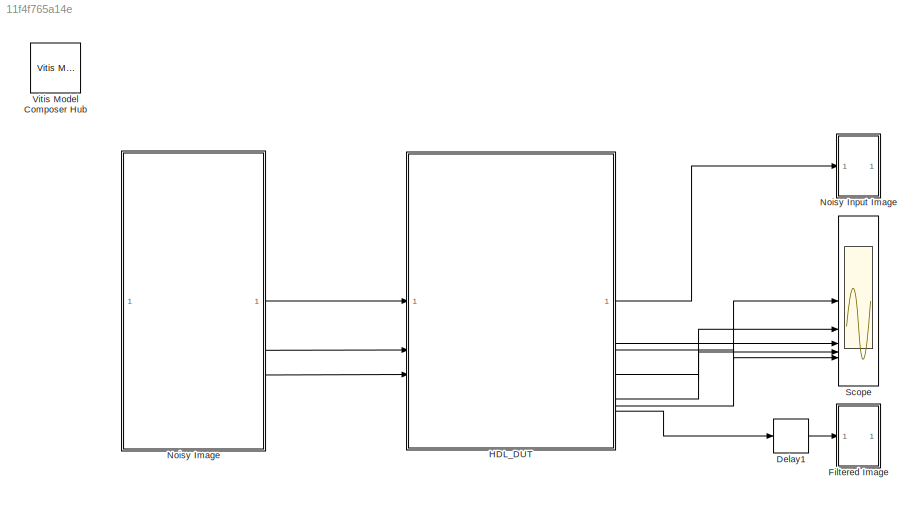
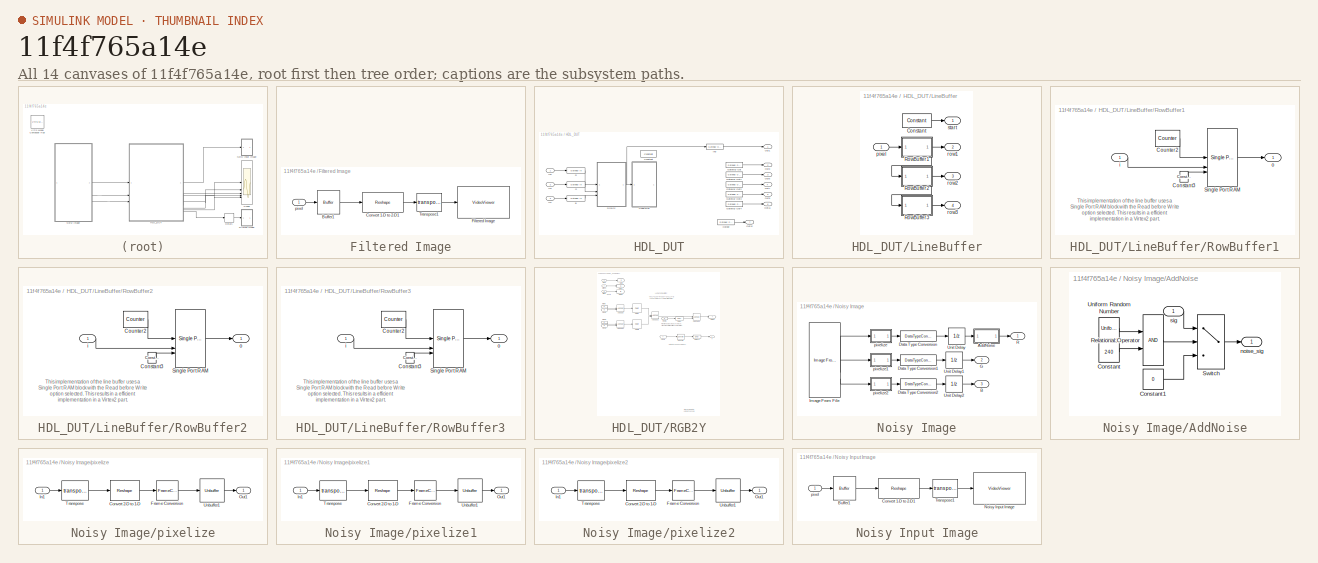
[diagram: thumbnail index - all 14 canvases of the model, root first then tree order]
MODEL slx_11f4f765a14e
KIND model
CONFIG AbsTol = auto
CONFIG EnableMultiTasking = on
CONFIG FixedStep = auto
CONFIG MaxStep = auto
CONFIG MinStep = auto
CONFIG PreLoadFcn = ImSize = 256;
CONFIG RelTol = 1e-3
CONFIG SampleTimeConstraint = Unconstrained
CONFIG SolverName = VariableStepDiscrete
CONFIG StartTime = 0.0
CONFIG StopTime = 256*256*2
BLOCK [Delay] Delay1
  DelayLength = 256*256-3*256-9-3
  InputPortMap = u0
  SampleTime = 1
BLOCK [SubSystem] Filtered Image
BLOCK [Buffer] Filtered Image/Buffer1
  N = ImSize*ImSize
BLOCK [Reshape] Filtered Image/Convert 1-D to 2-D1
  OutputDimensionality = Customize
  OutputDimensions = [ImSize ImSize]
BLOCK [VideoViewer] Filtered Image/Filtered Image
  FigPos = [722 1001 408 300]
  ScopeSpecificationString = vipscopes.VideoViewerScopeCfg('Version','2021a','Position',[755 390 410 300])
  colormapValue = gray(256)
BLOCK [Math] Filtered Image/Transpose1
  Operator = transpose
BLOCK [Inport] Filtered Image/pixel
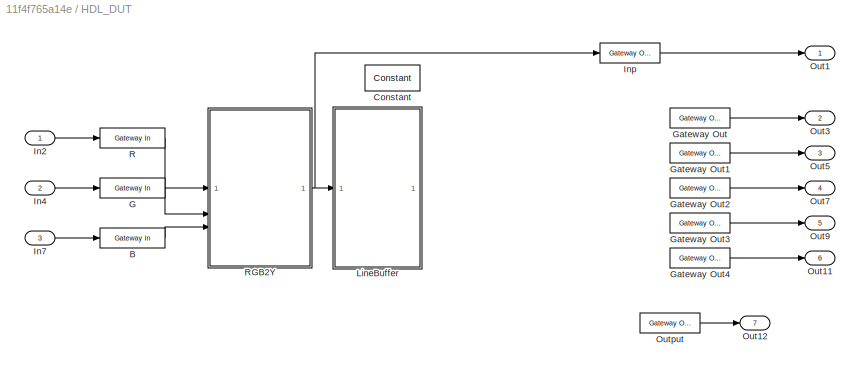
BLOCK [SubSystem] HDL_DUT
BLOCK [Reference] HDL_DUT/B  REF=hdlBasic/Gateway In
  SourceBlock = hdlBasic/Gateway In
  SourceType = Gateway In Block
BLOCK [Reference] HDL_DUT/Constant  REF=hdlBasic/Constant
  SourceBlock = hdlBasic/Constant
  SourceType = Constant Block Block
BLOCK [Reference] HDL_DUT/G  REF=hdlBasic/Gateway In
  SourceBlock = hdlBasic/Gateway In
  SourceType = Gateway In Block
BLOCK [Reference] HDL_DUT/Gateway Out  REF=hdlBasic/Gateway Out
  SourceBlock = hdlBasic/Gateway Out
  SourceType = Gateway Out Block
BLOCK [Reference] HDL_DUT/Gateway Out1  REF=hdlBasic/Gateway Out
  SourceBlock = hdlBasic/Gateway Out
  SourceType = Gateway Out Block
BLOCK [Reference] HDL_DUT/Gateway Out2  REF=hdlBasic/Gateway Out
  SourceBlock = hdlBasic/Gateway Out
  SourceType = Gateway Out Block
BLOCK [Reference] HDL_DUT/Gateway Out3  REF=hdlBasic/Gateway Out
  SourceBlock = hdlBasic/Gateway Out
  SourceType = Gateway Out Block
BLOCK [Reference] HDL_DUT/Gateway Out4  REF=hdlBasic/Gateway Out
  SourceBlock = hdlBasic/Gateway Out
  SourceType = Gateway Out Block
BLOCK [Inport] HDL_DUT/In2
BLOCK [Inport] HDL_DUT/In4
  Port = 2
BLOCK [Inport] HDL_DUT/In7
  Port = 3
BLOCK [Reference] HDL_DUT/Inp  REF=hdlBasic/Gateway Out
  SourceBlock = hdlBasic/Gateway Out
  SourceType = Gateway Out Block
BLOCK [SubSystem] HDL_DUT/LineBuffer
BLOCK [Reference] HDL_DUT/LineBuffer/Constant  REF=hdlBasic/Constant
  SourceBlock = hdlBasic/Constant
  SourceType = Constant Block Block
BLOCK [SubSystem] HDL_DUT/LineBuffer/RowBuffer1
BLOCK [Reference] HDL_DUT/LineBuffer/RowBuffer1/Constant3  REF=hdlBasic/Constant
  SourceBlock = hdlBasic/Constant
  SourceType = Constant Block Block
BLOCK [Reference] HDL_DUT/LineBuffer/RowBuffer1/Counter2  REF=hdlBasic/Counter
  SourceBlock = hdlBasic/Counter
  SourceType = Counter Block
BLOCK [Reference] HDL_DUT/LineBuffer/RowBuffer1/Single Port RAM  REF=hdlBasic/Single Port RAM
  SourceBlock = hdlBasic/Single Port RAM
  SourceType = Single Port Random Access Memory Block
BLOCK [Inport] HDL_DUT/LineBuffer/RowBuffer1/i
BLOCK [Outport] HDL_DUT/LineBuffer/RowBuffer1/o
  VectorParamsAs1DForOutWhenUnconnected = off
BLOCK [SubSystem] HDL_DUT/LineBuffer/RowBuffer2
BLOCK [Reference] HDL_DUT/LineBuffer/RowBuffer2/Constant3  REF=hdlBasic/Constant
  SourceBlock = hdlBasic/Constant
  SourceType = Constant Block Block
BLOCK [Reference] HDL_DUT/LineBuffer/RowBuffer2/Counter2  REF=hdlBasic/Counter
  SourceBlock = hdlBasic/Counter
  SourceType = Counter Block
BLOCK [Reference] HDL_DUT/LineBuffer/RowBuffer2/Single Port RAM  REF=hdlBasic/Single Port RAM
  SourceBlock = hdlBasic/Single Port RAM
  SourceType = Single Port Random Access Memory Block
BLOCK [Inport] HDL_DUT/LineBuffer/RowBuffer2/i
BLOCK [Outport] HDL_DUT/LineBuffer/RowBuffer2/o
  VectorParamsAs1DForOutWhenUnconnected = off
BLOCK [SubSystem] HDL_DUT/LineBuffer/RowBuffer3
BLOCK [Reference] HDL_DUT/LineBuffer/RowBuffer3/Constant3  REF=hdlBasic/Constant
  SourceBlock = hdlBasic/Constant
  SourceType = Constant Block Block
BLOCK [Reference] HDL_DUT/LineBuffer/RowBuffer3/Counter2  REF=hdlBasic/Counter
  SourceBlock = hdlBasic/Counter
  SourceType = Counter Block
BLOCK [Reference] HDL_DUT/LineBuffer/RowBuffer3/Single Port RAM  REF=hdlBasic/Single Port RAM
  SourceBlock = hdlBasic/Single Port RAM
  SourceType = Single Port Random Access Memory Block
BLOCK [Inport] HDL_DUT/LineBuffer/RowBuffer3/i
BLOCK [Outport] HDL_DUT/LineBuffer/RowBuffer3/o
  VectorParamsAs1DForOutWhenUnconnected = off
BLOCK [Inport] HDL_DUT/LineBuffer/pixel
BLOCK [Outport] HDL_DUT/LineBuffer/row1
  Port = 2
  VectorParamsAs1DForOutWhenUnconnected = off
BLOCK [Outport] HDL_DUT/LineBuffer/row2
  Port = 3
  VectorParamsAs1DForOutWhenUnconnected = off
BLOCK [Outport] HDL_DUT/LineBuffer/row3
  Port = 4
  VectorParamsAs1DForOutWhenUnconnected = off
BLOCK [Outport] HDL_DUT/LineBuffer/start
  VectorParamsAs1DForOutWhenUnconnected = off
BLOCK [Outport] HDL_DUT/Out1
BLOCK [Outport] HDL_DUT/Out11
  Port = 6
BLOCK [Outport] HDL_DUT/Out12
  Port = 7
BLOCK [Outport] HDL_DUT/Out3
  Port = 2
BLOCK [Outport] HDL_DUT/Out5
  Port = 3
BLOCK [Outport] HDL_DUT/Out7
  Port = 4
BLOCK [Outport] HDL_DUT/Out9
  Port = 5
BLOCK [Reference] HDL_DUT/Output  REF=hdlBasic/Gateway Out
  SourceBlock = hdlBasic/Gateway Out
  SourceType = Gateway Out Block
BLOCK [Reference] HDL_DUT/R  REF=hdlBasic/Gateway In
  SourceBlock = hdlBasic/Gateway In
  SourceType = Gateway In Block
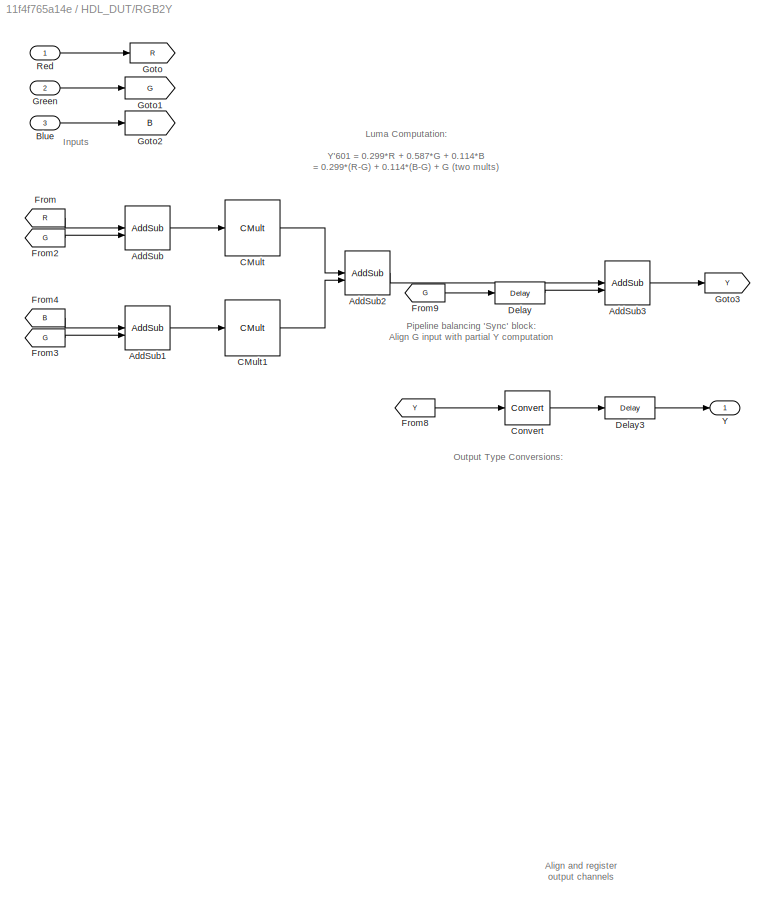
BLOCK [SubSystem] HDL_DUT/RGB2Y
BLOCK [Reference] HDL_DUT/RGB2Y/AddSub  REF=hdlBasic/AddSub
  SourceBlock = hdlBasic/AddSub
  SourceType = Adder/Subtracter Block
BLOCK [Reference] HDL_DUT/RGB2Y/AddSub1  REF=hdlBasic/AddSub
  SourceBlock = hdlBasic/AddSub
  SourceType = Adder/Subtracter Block
BLOCK [Reference] HDL_DUT/RGB2Y/AddSub2  REF=hdlBasic/AddSub
  SourceBlock = hdlBasic/AddSub
  SourceType = Adder/Subtracter Block
BLOCK [Reference] HDL_DUT/RGB2Y/AddSub3  REF=hdlBasic/AddSub
  SourceBlock = hdlBasic/AddSub
  SourceType = Adder/Subtracter Block
BLOCK [Inport] HDL_DUT/RGB2Y/Blue
  Port = 3
BLOCK [Reference] HDL_DUT/RGB2Y/CMult  REF=hdlBasic/CMult
  SourceBlock = hdlBasic/CMult
  SourceType = Constant Multiplier Block
BLOCK [Reference] HDL_DUT/RGB2Y/CMult1  REF=hdlBasic/CMult
  SourceBlock = hdlBasic/CMult
  SourceType = Constant Multiplier Block
BLOCK [Reference] HDL_DUT/RGB2Y/Convert  REF=hdlBasic/Convert
  SourceBlock = hdlBasic/Convert
  SourceType = Type Converter Block
BLOCK [Reference] HDL_DUT/RGB2Y/Delay  REF=hdlBasic/Delay
  SourceBlock = hdlBasic/Delay
  SourceType = Delay Block
BLOCK [Reference] HDL_DUT/RGB2Y/Delay3  REF=hdlBasic/Delay
  SourceBlock = hdlBasic/Delay
  SourceType = Delay Block
BLOCK [From] HDL_DUT/RGB2Y/From
  GotoTag = R
BLOCK [From] HDL_DUT/RGB2Y/From2
  GotoTag = G
BLOCK [From] HDL_DUT/RGB2Y/From3
  GotoTag = G
BLOCK [From] HDL_DUT/RGB2Y/From4
  GotoTag = B
BLOCK [From] HDL_DUT/RGB2Y/From8
  GotoTag = Y
BLOCK [From] HDL_DUT/RGB2Y/From9
  GotoTag = G
BLOCK [Goto] HDL_DUT/RGB2Y/Goto
  GotoTag = R
BLOCK [Goto] HDL_DUT/RGB2Y/Goto1
  GotoTag = G
BLOCK [Goto] HDL_DUT/RGB2Y/Goto2
  GotoTag = B
BLOCK [Goto] HDL_DUT/RGB2Y/Goto3
  GotoTag = Y
BLOCK [Inport] HDL_DUT/RGB2Y/Green
  Port = 2
BLOCK [Inport] HDL_DUT/RGB2Y/Red
BLOCK [Outport] HDL_DUT/RGB2Y/Y
  VectorParamsAs1DForOutWhenUnconnected = off
BLOCK [SubSystem] Noisy Image
BLOCK [SubSystem] Noisy Image/AddNoise
BLOCK [Constant] Noisy Image/AddNoise/Constant
  Value = 240
BLOCK [Constant] Noisy Image/AddNoise/Constant1
  Value = 0
BLOCK [RelationalOperator] Noisy Image/AddNoise/Relational Operator
  InputSameDT = off
  OutDataTypeStr = boolean
  SampleTime = 1
BLOCK [Switch] Noisy Image/AddNoise/Switch
  Criteria = u2 ~= 0
  InputSameDT = off
  SampleTime = 1
  SaturateOnIntegerOverflow = off
BLOCK [UniformRandomNumber] Noisy Image/AddNoise/Uniform Random Number
  Maximum = 255
  Minimum = 0
  SampleTime = 1
BLOCK [Outport] Noisy Image/AddNoise/noise_sig
  VectorParamsAs1DForOutWhenUnconnected = off
BLOCK [Inport] Noisy Image/AddNoise/sig
BLOCK [Outport] Noisy Image/B
  Port = 3
  VectorParamsAs1DForOutWhenUnconnected = off
BLOCK [DataTypeConversion] Noisy Image/Data Type Conversion
  OutDataTypeStr = uint8
  RndMeth = Floor
  SaturateOnIntegerOverflow = off
BLOCK [DataTypeConversion] Noisy Image/Data Type Conversion1
  OutDataTypeStr = uint8
  RndMeth = Floor
  SaturateOnIntegerOverflow = off
BLOCK [DataTypeConversion] Noisy Image/Data Type Conversion2
  OutDataTypeStr = uint8
  RndMeth = Floor
  SaturateOnIntegerOverflow = off
BLOCK [Outport] Noisy Image/G
  Port = 2
  VectorParamsAs1DForOutWhenUnconnected = off
BLOCK [Reference] Noisy Image/Image From File  REF=visionsources/Image From File
  SourceBlock = visionsources/Image From File
  SourceType = Image From File
  Tag = vipblks_nd
BLOCK [Outport] Noisy Image/R
  VectorParamsAs1DForOutWhenUnconnected = off
BLOCK [UnitDelay] Noisy Image/Unit Delay
  HasFrameUpgradeWarning = on
  SampleTime = -1
BLOCK [UnitDelay] Noisy Image/Unit Delay1
  HasFrameUpgradeWarning = on
  SampleTime = -1
BLOCK [UnitDelay] Noisy Image/Unit Delay2
  HasFrameUpgradeWarning = on
  SampleTime = -1
BLOCK [SubSystem] Noisy Image/pixelize
BLOCK [Reshape] Noisy Image/pixelize/Convert 2-D to 1-D
BLOCK [FrameConversion] Noisy Image/pixelize/Frame Conversion
BLOCK [Inport] Noisy Image/pixelize/In1
BLOCK [Outport] Noisy Image/pixelize/Out1
  VectorParamsAs1DForOutWhenUnconnected = off
BLOCK [Math] Noisy Image/pixelize/Transpose
  Operator = transpose
BLOCK [Unbuffer] Noisy Image/pixelize/Unbuffer1
BLOCK [SubSystem] Noisy Image/pixelize1
BLOCK [Reshape] Noisy Image/pixelize1/Convert 2-D to 1-D
BLOCK [FrameConversion] Noisy Image/pixelize1/Frame Conversion
BLOCK [Inport] Noisy Image/pixelize1/In1
BLOCK [Outport] Noisy Image/pixelize1/Out1
  VectorParamsAs1DForOutWhenUnconnected = off
BLOCK [Math] Noisy Image/pixelize1/Transpose
  Operator = transpose
BLOCK [Unbuffer] Noisy Image/pixelize1/Unbuffer1
BLOCK [SubSystem] Noisy Image/pixelize2
BLOCK [Reshape] Noisy Image/pixelize2/Convert 2-D to 1-D
BLOCK [FrameConversion] Noisy Image/pixelize2/Frame Conversion
BLOCK [Inport] Noisy Image/pixelize2/In1
BLOCK [Outport] Noisy Image/pixelize2/Out1
  VectorParamsAs1DForOutWhenUnconnected = off
BLOCK [Math] Noisy Image/pixelize2/Transpose
  Operator = transpose
BLOCK [Unbuffer] Noisy Image/pixelize2/Unbuffer1
BLOCK [SubSystem] Noisy Input Image
BLOCK [Buffer] Noisy Input Image/Buffer1
  N = ImSize*ImSize
BLOCK [Reshape] Noisy Input Image/Convert 1-D to 2-D1
  OutputDimensionality = Customize
  OutputDimensions = [ImSize ImSize]
BLOCK [VideoViewer] Noisy Input Image/Noisy Input Image
  FigPos = [291 1003 410 300]
  ScopeSpecificationString = vipscopes.VideoViewerScopeCfg('Version','2021a','Position',[755 390 410 300])
  colormapValue = gray(256)
BLOCK [Math] Noisy Input Image/Transpose1
  Operator = transpose
BLOCK [Inport] Noisy Input Image/pixel
BLOCK [Scope] Scope
  Floating = off
  NumInputPorts = 5
  ScopeSpecificationString = Simulink.scopes.TimeScopeBlockCfg('CurrentConfiguration', extmgr.ConfigurationSet(extmgr.Configuration('Core','General UI',true,'DisplayFullSourceName',false,'ShowMainToolbar',true),extmgr.Configuration('Sources','WiredSimulink',true,'DataLogging',false,'DataLoggingVariableName','ScopeData2','DataLoggingLimitDataPoints',true,'DataLoggingMaxPoints','5000','DataLoggingDecimateData',true,'DataLogging...<+5057ch>
BLOCK [Reference] Vitis Model Composer Hub  REF=vmcUtilities/Vitis Model Composer Hub
  SourceBlock = vmcUtilities/Vitis Model Composer Hub
  SourceType = VMC Hub
  Tag = genX
  UserDataPersistent = on
ANNOTATION HDL_DUT/LineBuffer/RowBuffer1: This implementation of the line buffer uses a Single Port RAM block with the Read before Write option selected. This results in a efficient implementation in a Virtex2 part.
ANNOTATION HDL_DUT/LineBuffer/RowBuffer2: This implementation of the line buffer uses a Single Port RAM block with the Read before Write option selected. This results in a efficient implementation in a Virtex2 part.
ANNOTATION HDL_DUT/LineBuffer/RowBuffer3: This implementation of the line buffer uses a Single Port RAM block with the Read before Write option selected. This results in a efficient implementation in a Virtex2 part.
ANNOTATION HDL_DUT/RGB2Y: Luma Computation: Y'601 = 0.299*R + 0.587*G + 0.114*B = 0.299*(R-G) + 0.114*(B-G) + G (two mults)
ANNOTATION HDL_DUT/RGB2Y: Align and register output channels
ANNOTATION HDL_DUT/RGB2Y: Inputs
ANNOTATION HDL_DUT/RGB2Y: Output Type Conversions:
ANNOTATION HDL_DUT/RGB2Y: Pipeline balancing 'Sync' block: Align G input with partial Y computation
LINE Delay1:1 -> Filtered Image:1
LINE Filtered Image/Buffer1:1 -> Filtered Image/Convert 1-D to 2-D1:1
LINE Filtered Image/Convert 1-D to 2-D1:1 -> Filtered Image/Transpose1:1
LINE Filtered Image/Transpose1:1 -> Filtered Image/Filtered Image:1
LINE Filtered Image/pixel:1 -> Filtered Image/Buffer1:1
LINE HDL_DUT/B:1 -> HDL_DUT/RGB2Y:3
LINE HDL_DUT/G:1 -> HDL_DUT/RGB2Y:2
LINE HDL_DUT/Gateway Out1:1 -> HDL_DUT/Out5:1
LINE HDL_DUT/Gateway Out2:1 -> HDL_DUT/Out7:1
LINE HDL_DUT/Gateway Out3:1 -> HDL_DUT/Out9:1
LINE HDL_DUT/Gateway Out4:1 -> HDL_DUT/Out11:1
LINE HDL_DUT/Gateway Out:1 -> HDL_DUT/Out3:1
LINE HDL_DUT/In2:1 -> HDL_DUT/R:1
LINE HDL_DUT/In4:1 -> HDL_DUT/G:1
LINE HDL_DUT/In7:1 -> HDL_DUT/B:1
LINE HDL_DUT/Inp:1 -> HDL_DUT/Out1:1
LINE HDL_DUT/LineBuffer/Constant:1 -> HDL_DUT/LineBuffer/start:1
NET HDL_DUT/LineBuffer/RowBuffer1:1 -> HDL_DUT/LineBuffer/RowBuffer2:1, HDL_DUT/LineBuffer/row1:1
NET HDL_DUT/LineBuffer/RowBuffer2:1 -> HDL_DUT/LineBuffer/RowBuffer3:1, HDL_DUT/LineBuffer/row2:1
LINE HDL_DUT/LineBuffer/RowBuffer3:1 -> HDL_DUT/LineBuffer/row3:1
LINE HDL_DUT/LineBuffer/pixel:1 -> HDL_DUT/LineBuffer/RowBuffer1:1
LINE HDL_DUT/Output:1 -> HDL_DUT/Out12:1
LINE HDL_DUT/R:1 -> HDL_DUT/RGB2Y:1
LINE HDL_DUT/RGB2Y/AddSub1:1 -> HDL_DUT/RGB2Y/CMult1:1
LINE HDL_DUT/RGB2Y/AddSub2:1 -> HDL_DUT/RGB2Y/AddSub3:1
LINE HDL_DUT/RGB2Y/AddSub3:1 -> HDL_DUT/RGB2Y/Goto3:1
LINE HDL_DUT/RGB2Y/AddSub:1 -> HDL_DUT/RGB2Y/CMult:1
LINE HDL_DUT/RGB2Y/Blue:1 -> HDL_DUT/RGB2Y/Goto2:1
LINE HDL_DUT/RGB2Y/CMult1:1 -> HDL_DUT/RGB2Y/AddSub2:2
LINE HDL_DUT/RGB2Y/CMult:1 -> HDL_DUT/RGB2Y/AddSub2:1
LINE HDL_DUT/RGB2Y/Convert:1 -> HDL_DUT/RGB2Y/Delay3:1
LINE HDL_DUT/RGB2Y/Delay3:1 -> HDL_DUT/RGB2Y/Y:1
LINE HDL_DUT/RGB2Y/Delay:1 -> HDL_DUT/RGB2Y/AddSub3:2
LINE HDL_DUT/RGB2Y/From2:1 -> HDL_DUT/RGB2Y/AddSub:2
LINE HDL_DUT/RGB2Y/From3:1 -> HDL_DUT/RGB2Y/AddSub1:2
LINE HDL_DUT/RGB2Y/From4:1 -> HDL_DUT/RGB2Y/AddSub1:1
LINE HDL_DUT/RGB2Y/From8:1 -> HDL_DUT/RGB2Y/Convert:1
LINE HDL_DUT/RGB2Y/From9:1 -> HDL_DUT/RGB2Y/Delay:1
LINE HDL_DUT/RGB2Y/From:1 -> HDL_DUT/RGB2Y/AddSub:1
LINE HDL_DUT/RGB2Y/Green:1 -> HDL_DUT/RGB2Y/Goto1:1
LINE HDL_DUT/RGB2Y/Red:1 -> HDL_DUT/RGB2Y/Goto:1
NET HDL_DUT/RGB2Y:1 -> HDL_DUT/Inp:1, HDL_DUT/LineBuffer:1
LINE HDL_DUT:1 -> Noisy Input Image:1
LINE HDL_DUT:2 -> Scope:1
LINE HDL_DUT:3 -> Scope:2
LINE HDL_DUT:4 -> Scope:3
LINE HDL_DUT:5 -> Scope:4
LINE HDL_DUT:6 -> Scope:5
LINE HDL_DUT:7 -> Delay1:1
LINE Noisy Image/AddNoise/Constant1:1 -> Noisy Image/AddNoise/Switch:3
LINE Noisy Image/AddNoise/Constant:1 -> Noisy Image/AddNoise/Relational Operator:2
LINE Noisy Image/AddNoise/Relational Operator:1 -> Noisy Image/AddNoise/Switch:2
LINE Noisy Image/AddNoise/Switch:1 -> Noisy Image/AddNoise/noise_sig:1
LINE Noisy Image/AddNoise/Uniform Random Number:1 -> Noisy Image/AddNoise/Relational Operator:1
LINE Noisy Image/AddNoise/sig:1 -> Noisy Image/AddNoise/Switch:1
LINE Noisy Image/AddNoise:1 -> Noisy Image/R:1
LINE Noisy Image/Data Type Conversion1:1 -> Noisy Image/Unit Delay1:1
LINE Noisy Image/Data Type Conversion2:1 -> Noisy Image/Unit Delay2:1
LINE Noisy Image/Data Type Conversion:1 -> Noisy Image/Unit Delay:1
LINE Noisy Image/Image From File:1 -> Noisy Image/pixelize:1
LINE Noisy Image/Image From File:2 -> Noisy Image/pixelize1:1
LINE Noisy Image/Image From File:3 -> Noisy Image/pixelize2:1
LINE Noisy Image/Unit Delay1:1 -> Noisy Image/G:1
LINE Noisy Image/Unit Delay2:1 -> Noisy Image/B:1
LINE Noisy Image/Unit Delay:1 -> Noisy Image/AddNoise:1
LINE Noisy Image/pixelize/Convert 2-D to 1-D:1 -> Noisy Image/pixelize/Frame Conversion:1
LINE Noisy Image/pixelize/Frame Conversion:1 -> Noisy Image/pixelize/Unbuffer1:1
LINE Noisy Image/pixelize/In1:1 -> Noisy Image/pixelize/Transpose:1
LINE Noisy Image/pixelize/Transpose:1 -> Noisy Image/pixelize/Convert 2-D to 1-D:1
LINE Noisy Image/pixelize/Unbuffer1:1 -> Noisy Image/pixelize/Out1:1
LINE Noisy Image/pixelize1/Convert 2-D to 1-D:1 -> Noisy Image/pixelize1/Frame Conversion:1
LINE Noisy Image/pixelize1/Frame Conversion:1 -> Noisy Image/pixelize1/Unbuffer1:1
LINE Noisy Image/pixelize1/In1:1 -> Noisy Image/pixelize1/Transpose:1
LINE Noisy Image/pixelize1/Transpose:1 -> Noisy Image/pixelize1/Convert 2-D to 1-D:1
LINE Noisy Image/pixelize1/Unbuffer1:1 -> Noisy Image/pixelize1/Out1:1
LINE Noisy Image/pixelize1:1 -> Noisy Image/Data Type Conversion1:1
LINE Noisy Image/pixelize2/Convert 2-D to 1-D:1 -> Noisy Image/pixelize2/Frame Conversion:1
LINE Noisy Image/pixelize2/Frame Conversion:1 -> Noisy Image/pixelize2/Unbuffer1:1
LINE Noisy Image/pixelize2/In1:1 -> Noisy Image/pixelize2/Transpose:1
LINE Noisy Image/pixelize2/Transpose:1 -> Noisy Image/pixelize2/Convert 2-D to 1-D:1
LINE Noisy Image/pixelize2/Unbuffer1:1 -> Noisy Image/pixelize2/Out1:1
LINE Noisy Image/pixelize2:1 -> Noisy Image/Data Type Conversion2:1
LINE Noisy Image/pixelize:1 -> Noisy Image/Data Type Conversion:1
LINE Noisy Image:1 -> HDL_DUT:1
LINE Noisy Image:2 -> HDL_DUT:2
LINE Noisy Image:3 -> HDL_DUT:3
LINE Noisy Input Image/Buffer1:1 -> Noisy Input Image/Convert 1-D to 2-D1:1
LINE Noisy Input Image/Convert 1-D to 2-D1:1 -> Noisy Input Image/Transpose1:1
LINE Noisy Input Image/Transpose1:1 -> Noisy Input Image/Noisy Input Image:1
LINE Noisy Input Image/pixel:1 -> Noisy Input Image/Buffer1:1
note: NET lines group one-source signal fan-out (src -> all destinations, sorted); 1:1 wires keep LINE
